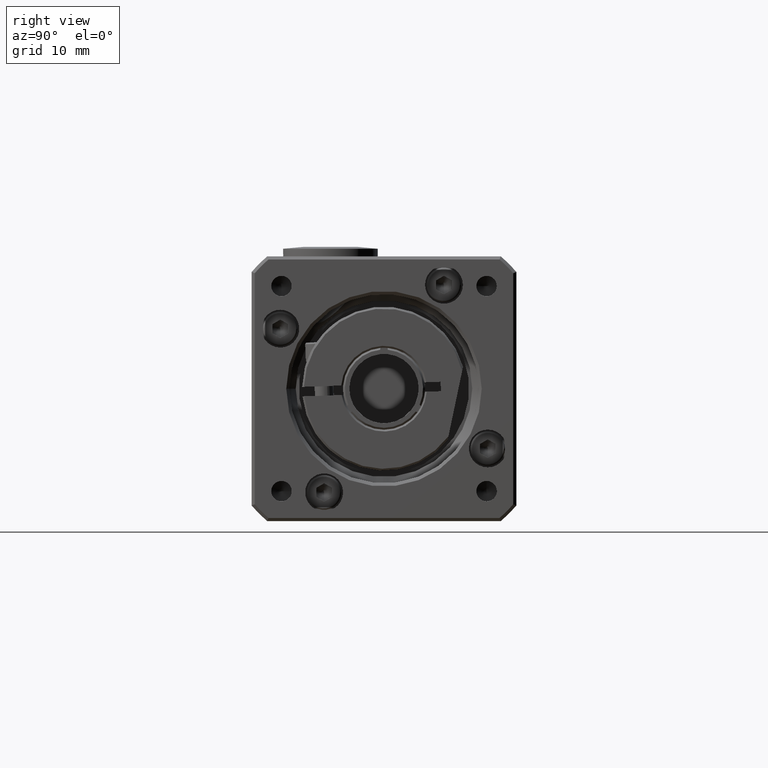
[diagram: clean part render]
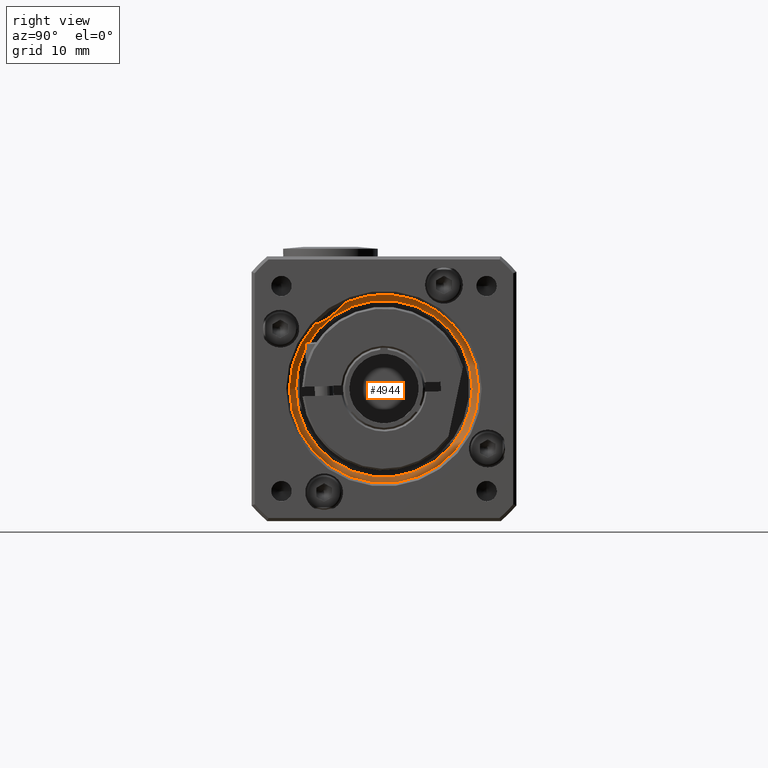
[diagram: same view with one face highlighted and labeled with its STEP entity id]
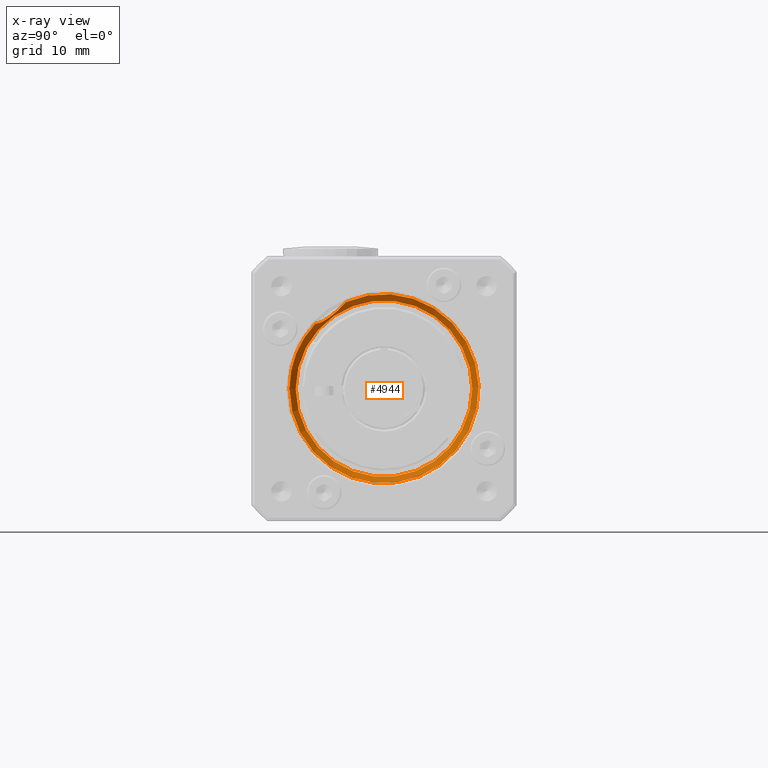
[diagram: x-ray of the same camera — body ghosted, the highlighted face saturated]
A machine part, right view. The second image highlights one B-rep face of the part: STEP entity #4944.
The next image is the same camera in x-ray: the body ghosted, the highlighted face saturated — about 0% of this face is hidden behind the body in this view.
In plain terms, the highlighted conical surface has half-angle 45 deg.
Its self-contained STEP definition (entity closure, byte-faithful):
#59=B_SPLINE_CURVE_WITH_KNOTS('',3,(#8265,#8266,#8267,#8268,#8269,#8270,
#8271,#8272,#8273,#8274,#8275,#8276),.UNSPECIFIED.,.F.,.F.,(4,2,2,2,2,4),
(2.70346436937318,2.80436828367936,2.99543556176353,3.18650283984771,3.25153405232948,
3.30580857138017),.UNSPECIFIED.);
#189=CONICAL_SURFACE('',#5444,14.5,44.9999999999999);
#917=FACE_BOUND('',#1557,.T.);
#1157=FACE_OUTER_BOUND('',#1556,.T.);
#1556=EDGE_LOOP('',(#3874,#3875));
#1557=EDGE_LOOP('',(#3876));
#1898=CIRCLE('',#5338,14.);
#1940=CIRCLE('',#5407,15.);
#2274=VERTEX_POINT('',#7961);
#2328=VERTEX_POINT('',#8177);
#2329=VERTEX_POINT('',#8178);
#2789=EDGE_CURVE('',#2274,#2274,#1898,.T.);
#2877=EDGE_CURVE('',#2329,#2328,#1940,.T.);
#2894=EDGE_CURVE('',#2329,#2328,#59,.T.);
#3874=ORIENTED_EDGE('',*,*,#2894,.T.);
#3875=ORIENTED_EDGE('',*,*,#2877,.F.);
#3876=ORIENTED_EDGE('',*,*,#2789,.T.);
#4944=ADVANCED_FACE('',(#1157,#917),#189,.F.);
#5338=AXIS2_PLACEMENT_3D('',#7962,#6301,#6302);
#5407=AXIS2_PLACEMENT_3D('',#8214,#6468,#6469);
#5444=AXIS2_PLACEMENT_3D('',#8277,#6544,#6545);
#6301=DIRECTION('center_axis',(-1.,3.09496634439259E-16,1.95245496793417E-15));
#6302=DIRECTION('ref_axis',(-1.95245496793418E-15,-8.39606162372704E-15,
-1.));
#6468=DIRECTION('center_axis',(-1.,3.09496634439259E-16,1.95245496793417E-15));
#6469=DIRECTION('ref_axis',(-1.95245496793418E-15,-8.39606162372704E-15,
-1.));
#6544=DIRECTION('center_axis',(1.,-3.09496634439259E-16,-1.95245496793417E-15));
#6545=DIRECTION('ref_axis',(-3.09496634439242E-16,-1.,8.39606162372704E-15));
#7961=CARTESIAN_POINT('',(20.7159950143862,-52.8674851319124,-27.3477552941332));
#7962=CARTESIAN_POINT('Origin',(20.7159950143862,-38.8674851319124,-27.3477552941333));
#8177=CARTESIAN_POINT('',(21.7159950143863,-49.7783978221606,-17.0544572674665));
#8178=CARTESIAN_POINT('',(21.7159950143863,-44.9565724416641,-13.639253708102));
#8214=CARTESIAN_POINT('Origin',(21.7159950143862,-38.8674851319124,-27.3477552941333));
#8265=CARTESIAN_POINT('Ctrl Pts',(21.7159950143863,-44.9565724416641,-13.639253708102));
#8266=CARTESIAN_POINT('Ctrl Pts',(21.5777128675698,-45.1573211107533,-13.8797328264767));
#8267=CARTESIAN_POINT('Ctrl Pts',(21.4564303523003,-45.3704305077599,-14.1158117929654));
#8268=CARTESIAN_POINT('Ctrl Pts',(21.1603850019014,-46.0147645056869,-14.7824314050704));
#8269=CARTESIAN_POINT('Ctrl Pts',(21.0179252037277,-46.5167029784424,-15.2442650852772));
#8270=CARTESIAN_POINT('Ctrl Pts',(20.9379393113517,-47.5816384483635,-16.087780436927));
#8271=CARTESIAN_POINT('Ctrl Pts',(20.9971502266966,-48.1420702520963,-16.4723836102035));
#8272=CARTESIAN_POINT('Ctrl Pts',(21.239502748884,-48.8804121241765,-16.8257314874699));
#8273=CARTESIAN_POINT('Ctrl Pts',(21.3226709265807,-49.0868639935481,-16.9096904284797));
#8274=CARTESIAN_POINT('Ctrl Pts',(21.5114069913066,-49.4590309689254,-17.0159113132377));
#8275=CARTESIAN_POINT('Ctrl Pts',(21.6110287425376,-49.6260148872843,-17.0458941402783));
#8276=CARTESIAN_POINT('Ctrl Pts',(21.7159950143862,-49.7783978221606,-17.0544572674665));
#8277=CARTESIAN_POINT('Origin',(21.2159950143862,-38.8674851319124,-27.3477552941333));